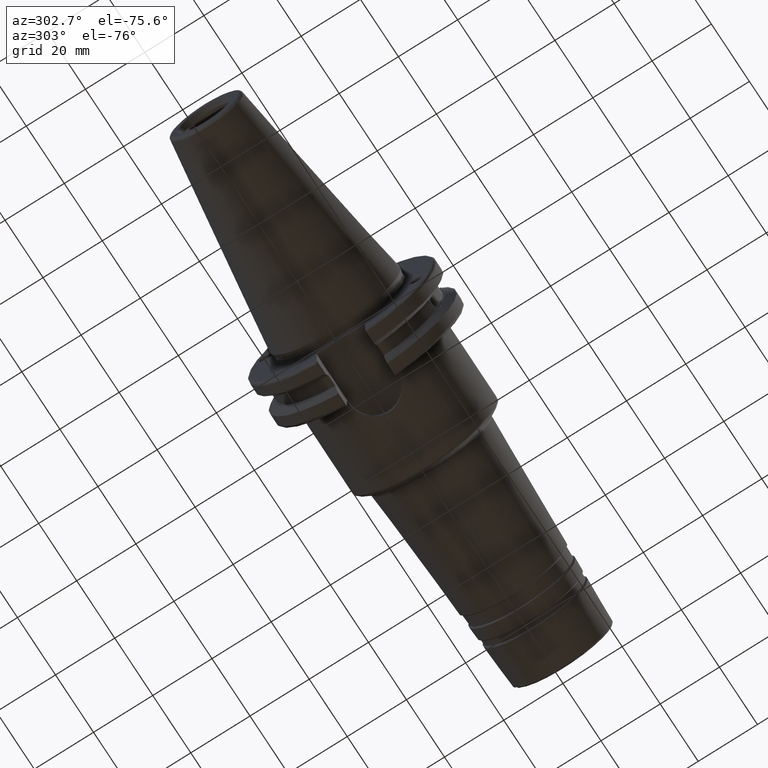
[diagram: clean part render]
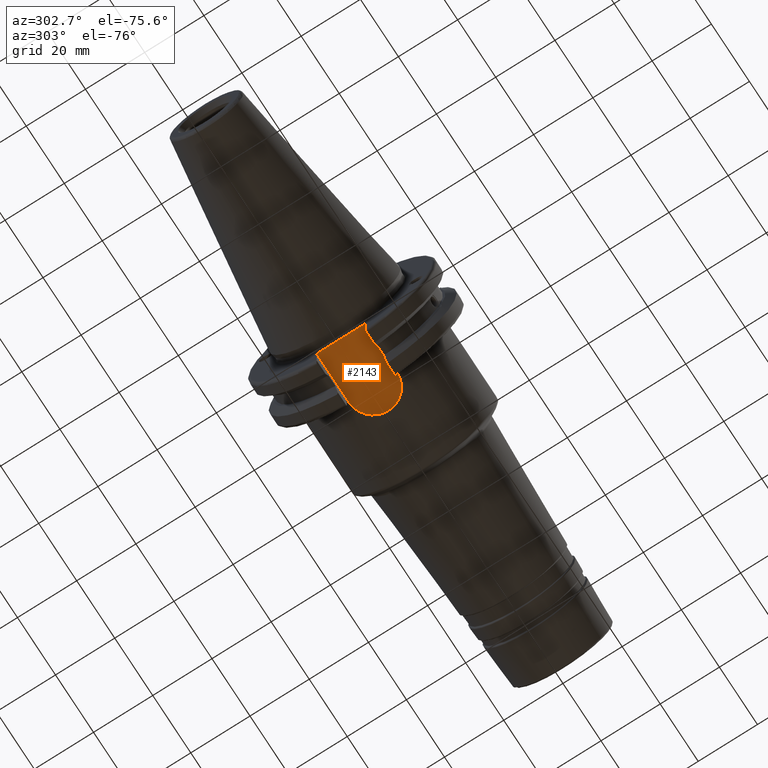
[diagram: same view with one face highlighted and labeled with its STEP entity id]
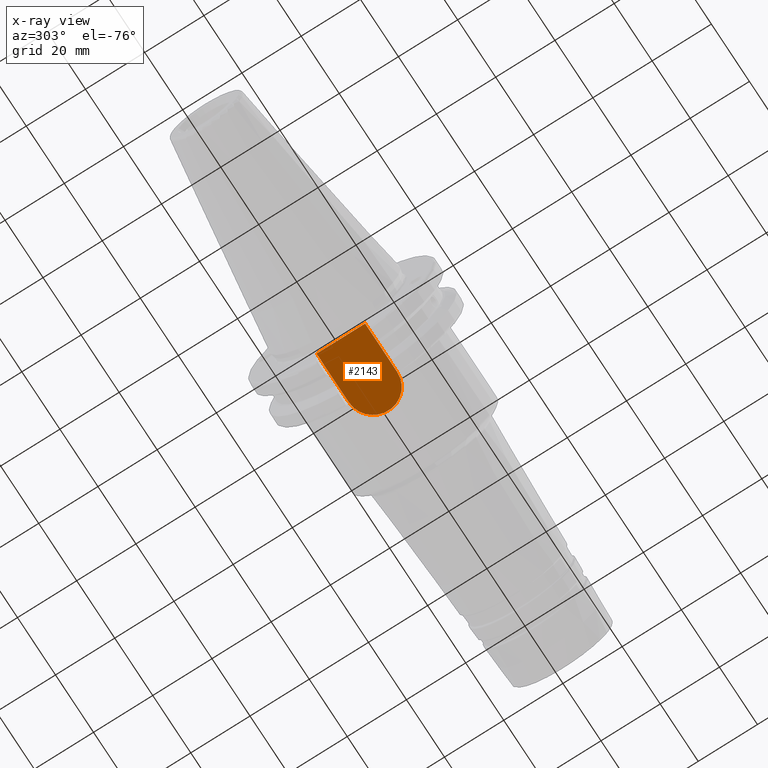
[diagram: x-ray of the same camera — body ghosted, the highlighted face saturated]
A machine part, auxiliary view. The second image highlights one B-rep face of the part: STEP entity #2143.
The next image is the same camera in x-ray: the body ghosted, the highlighted face saturated — about 0% of this face is hidden behind the body in this view.
In plain terms, the highlighted planar face has unit normal (0, 0, 1).
Its self-contained STEP definition (entity closure, byte-faithful):
#71=PLANE('',#2445);
#254=FACE_OUTER_BOUND('',#373,.T.);
#373=EDGE_LOOP('',(#1901,#1902,#1903,#1904));
#464=LINE('',#3921,#563);
#468=LINE('',#3971,#567);
#478=LINE('',#4052,#577);
#563=VECTOR('',#2997,10.);
#567=VECTOR('',#3015,10.);
#577=VECTOR('',#3033,10.);
#606=CIRCLE('',#2200,8.19);
#785=VERTEX_POINT('',#3299);
#786=VERTEX_POINT('',#3301);
#953=VERTEX_POINT('',#3902);
#962=VERTEX_POINT('',#3919);
#1029=EDGE_CURVE('',#786,#785,#606,.T.);
#1261=EDGE_CURVE('',#962,#953,#464,.T.);
#1273=EDGE_CURVE('',#962,#786,#468,.T.);
#1294=EDGE_CURVE('',#785,#953,#478,.T.);
#1901=ORIENTED_EDGE('',*,*,#1261,.F.);
#1902=ORIENTED_EDGE('',*,*,#1273,.T.);
#1903=ORIENTED_EDGE('',*,*,#1029,.T.);
#1904=ORIENTED_EDGE('',*,*,#1294,.T.);
#2143=ADVANCED_FACE('',(#254),#71,.F.);
#2200=AXIS2_PLACEMENT_3D('',#3302,#2514,#2515);
#2445=AXIS2_PLACEMENT_3D('',#4139,#3082,#3083);
#2514=DIRECTION('center_axis',(0.,0.,-1.));
#2515=DIRECTION('ref_axis',(0.,1.,0.));
#2997=DIRECTION('',(0.,-1.,0.));
#3015=DIRECTION('',(1.,-2.63163976207444E-16,0.));
#3033=DIRECTION('',(-1.,6.57909940518611E-17,0.));
#3082=DIRECTION('center_axis',(0.,0.,1.));
#3083=DIRECTION('ref_axis',(1.,0.,0.));
#3299=CARTESIAN_POINT('',(20.05,-8.19,-22.6));
#3301=CARTESIAN_POINT('',(20.05,8.19,-22.6));
#3302=CARTESIAN_POINT('Origin',(20.05,-3.91452606313721E-16,-22.6));
#3902=CARTESIAN_POINT('',(3.175,-8.19,-22.6));
#3919=CARTESIAN_POINT('',(3.175,8.19,-22.6));
#3921=CARTESIAN_POINT('',(3.175,15.875,-22.6));
#3971=CARTESIAN_POINT('',(3.175,8.19,-22.6));
#4052=CARTESIAN_POINT('',(20.05,-8.19,-22.6));
#4139=CARTESIAN_POINT('Origin',(15.7075,-5.55111512312578E-16,-22.6));